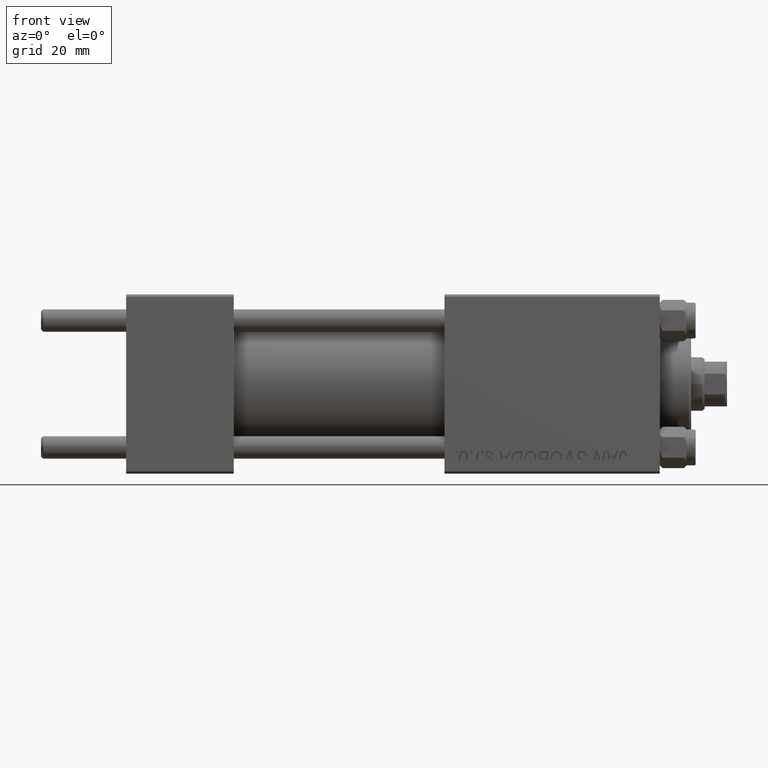
[diagram: clean part render]
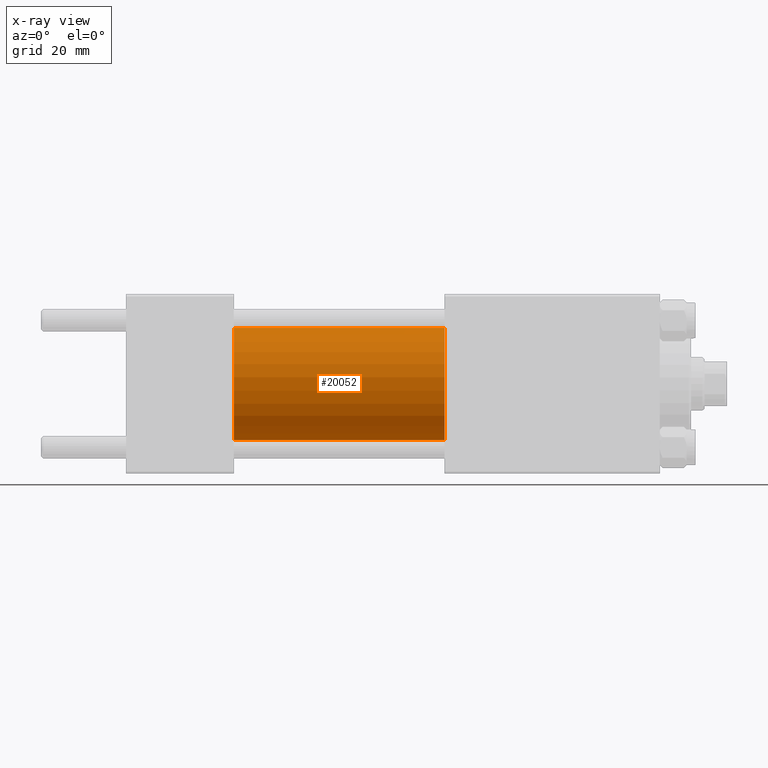
[diagram: x-ray — body ghosted, one internal face saturated and labeled with its STEP entity id]
A machine part, front view, then the same camera in x-ray: the body is ghosted and one INTERNAL B-rep face — a face not visible from any outside direction — is saturated and labeled: STEP entity #20052.
In plain terms, the highlighted cylindrical surface (partial cylindrical patch) has radius 12.5 mm, axis along (-1, -0, -0).
Its self-contained STEP definition (entity closure, byte-faithful):
#117 = VERTEX_POINT ( 'NONE', #20162 ) ;
#531 = CARTESIAN_POINT ( 'NONE',  ( 71.00000000000001421, 0.000000000000000000, 12.49999999999999645 ) ) ;
#2948 = DIRECTION ( 'NONE',  ( 1.000000000000000000, 0.000000000000000000, 0.000000000000000000 ) ) ;
#3411 = CARTESIAN_POINT ( 'NONE',  ( 71.00000000000001421, 1.530808498934191127E-15, -12.49999999999999645 ) ) ;
#5403 = CARTESIAN_POINT ( 'NONE',  ( 71.00000000000001421, 0.000000000000000000, 0.000000000000000000 ) ) ;
#5794 = AXIS2_PLACEMENT_3D ( 'NONE', #26544, #31336, #38141 ) ;
#5959 = VERTEX_POINT ( 'NONE', #30713 ) ;
#7185 = ORIENTED_EDGE ( 'NONE', *, *, #25043, .F. ) ;
#7440 = AXIS2_PLACEMENT_3D ( 'NONE', #5403, #24533, #17240 ) ;
#8918 = VECTOR ( 'NONE', #29238, 1000.000000000000000 ) ;
#10756 = DIRECTION ( 'NONE',  ( 0.000000000000000000, 0.000000000000000000, -1.000000000000000000 ) ) ;
#11798 = EDGE_CURVE ( 'NONE', #117, #5959, #24096, .T. ) ;
#14615 = CARTESIAN_POINT ( 'NONE',  ( 71.00000000000001421, 0.000000000000000000, 12.49999999999999645 ) ) ;
#16138 = DIRECTION ( 'NONE',  ( -1.000000000000000000, -0.000000000000000000, -0.000000000000000000 ) ) ;
#17240 = DIRECTION ( 'NONE',  ( 0.000000000000000000, 0.000000000000000000, 1.000000000000000000 ) ) ;
#17367 = EDGE_CURVE ( 'NONE', #18466, #38835, #36350, .T. ) ;
#18466 = VERTEX_POINT ( 'NONE', #14615 ) ;
#20052 = ADVANCED_FACE ( 'NONE', ( #20520 ), #28332, .F. ) ;
#20162 = CARTESIAN_POINT ( 'NONE',  ( 24.00000000000000000, 0.000000000000000000, 12.49999999999999645 ) ) ;
#20520 = FACE_OUTER_BOUND ( 'NONE', #46720, .T. ) ;
#24096 = CIRCLE ( 'NONE', #31329, 12.49999999999999645 ) ;
#24533 = DIRECTION ( 'NONE',  ( -1.000000000000000000, -0.000000000000000000, -0.000000000000000000 ) ) ;
#25026 = ORIENTED_EDGE ( 'NONE', *, *, #49085, .T. ) ;
#25043 = EDGE_CURVE ( 'NONE', #18466, #117, #35016, .T. ) ;
#26083 = ORIENTED_EDGE ( 'NONE', *, *, #17367, .T. ) ;
#26544 = CARTESIAN_POINT ( 'NONE',  ( 71.00000000000001421, 0.000000000000000000, 0.000000000000000000 ) ) ;
#27965 = ORIENTED_EDGE ( 'NONE', *, *, #11798, .F. ) ;
#28332 = CYLINDRICAL_SURFACE ( 'NONE', #7440, 12.49999999999999645 ) ;
#28417 = VECTOR ( 'NONE', #16138, 1000.000000000000000 ) ;
#28741 = LINE ( 'NONE', #36546, #8918 ) ;
#29238 = DIRECTION ( 'NONE',  ( -1.000000000000000000, -0.000000000000000000, -0.000000000000000000 ) ) ;
#30713 = CARTESIAN_POINT ( 'NONE',  ( 24.00000000000000000, 1.530808498934191127E-15, -12.49999999999999645 ) ) ;
#31329 = AXIS2_PLACEMENT_3D ( 'NONE', #41480, #2948, #10756 ) ;
#31336 = DIRECTION ( 'NONE',  ( 1.000000000000000000, 0.000000000000000000, 0.000000000000000000 ) ) ;
#35016 = LINE ( 'NONE', #531, #28417 ) ;
#36350 = CIRCLE ( 'NONE', #5794, 12.49999999999999645 ) ;
#36546 = CARTESIAN_POINT ( 'NONE',  ( 71.00000000000001421, 1.530808498934191127E-15, -12.49999999999999645 ) ) ;
#38141 = DIRECTION ( 'NONE',  ( 0.000000000000000000, 0.000000000000000000, -1.000000000000000000 ) ) ;
#38835 = VERTEX_POINT ( 'NONE', #3411 ) ;
#41480 = CARTESIAN_POINT ( 'NONE',  ( 24.00000000000000000, 0.000000000000000000, 0.000000000000000000 ) ) ;
#46720 = EDGE_LOOP ( 'NONE', ( #26083, #25026, #27965, #7185 ) ) ;
#49085 = EDGE_CURVE ( 'NONE', #38835, #5959, #28741, .T. ) ;